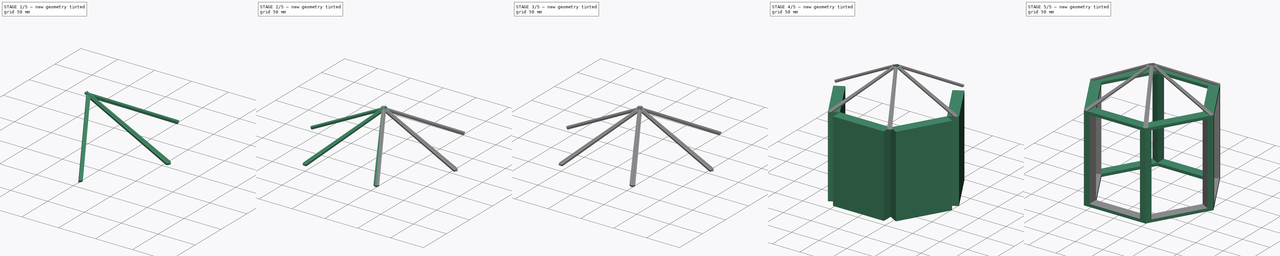
[diagram: build sequence overview — one tinted view per stage of 5, left to right]
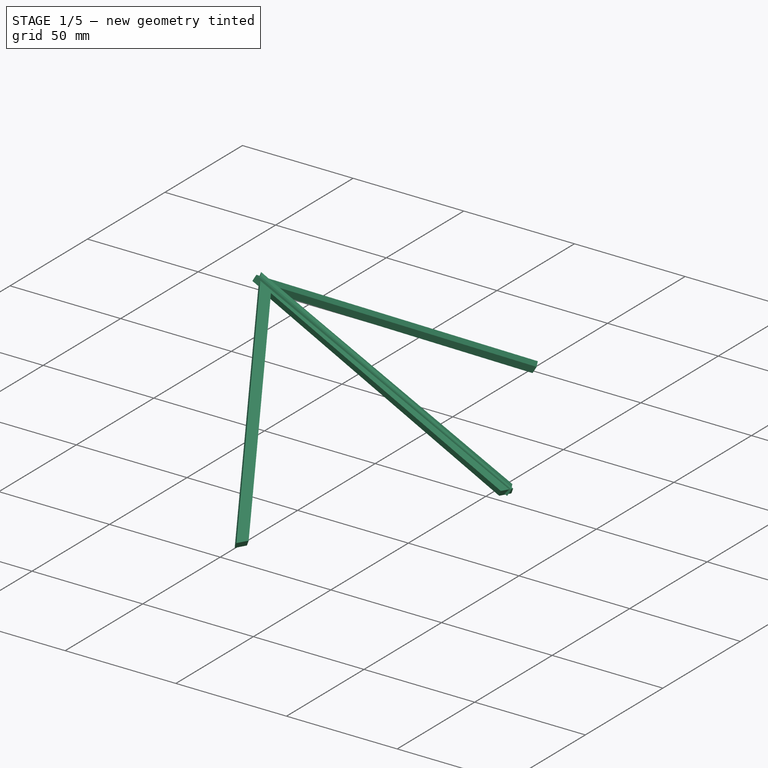
[diagram: stage 1 of 5 — iso view after this stage's code; geometry added in this stage tinted green]
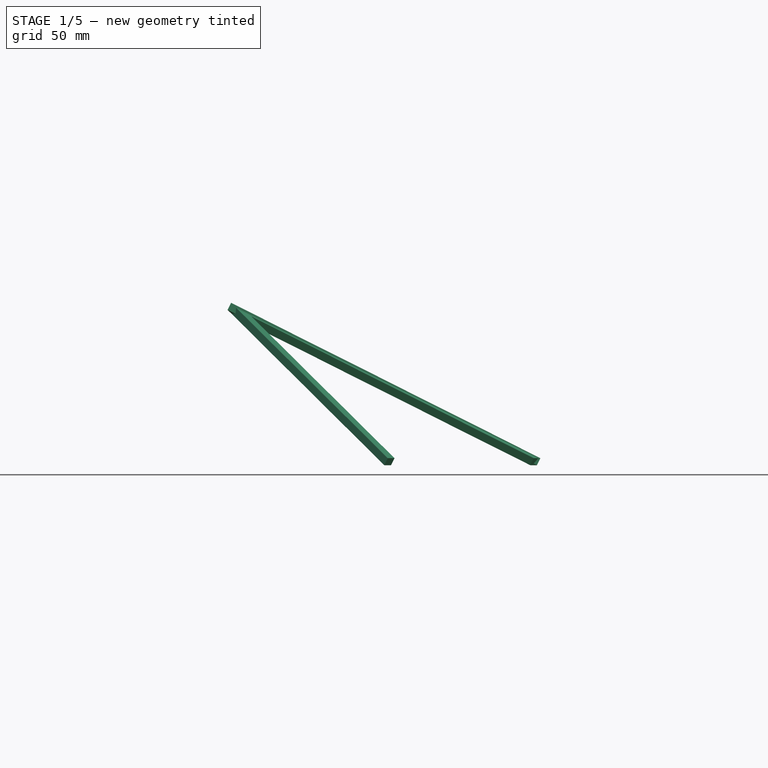
[diagram: stage 1 of 5 — front view after this stage's code; geometry added in this stage tinted green]
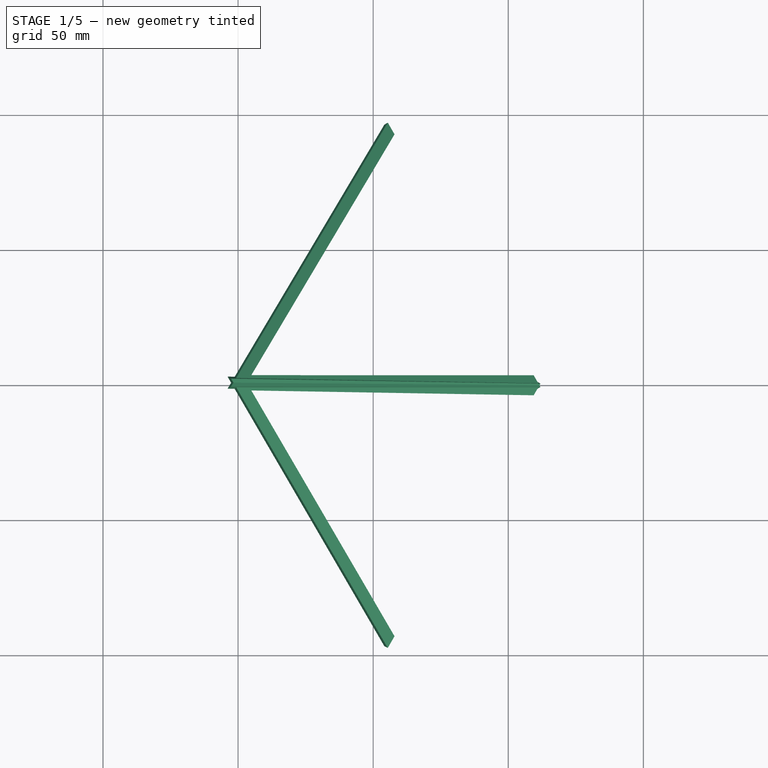
[diagram: stage 1 of 5 — top view after this stage's code; geometry added in this stage tinted green]
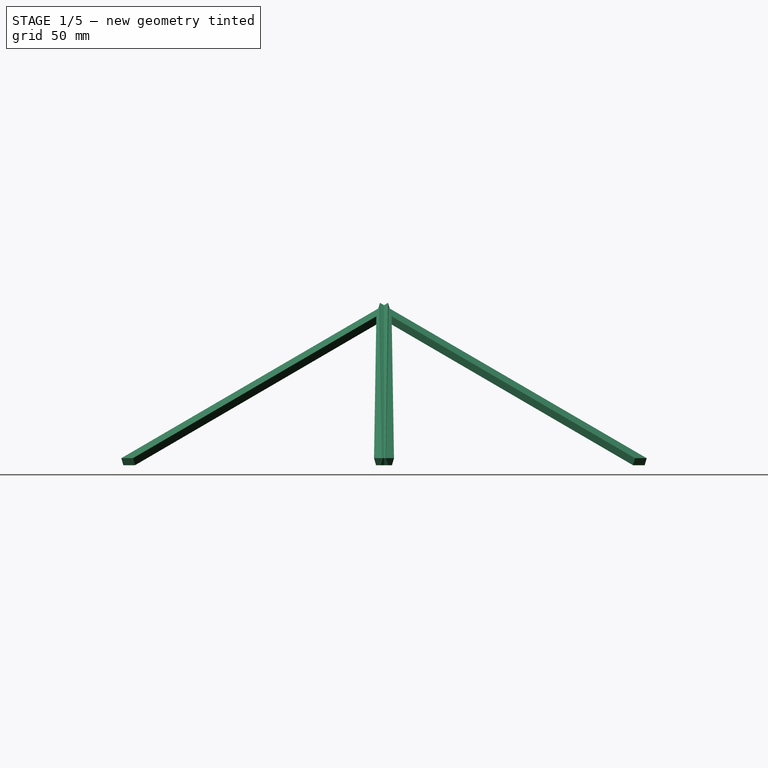
[diagram: stage 1 of 5 — right view after this stage's code; geometry added in this stage tinted green]
FCSTD DOCUMENT  (FreeCAD 1.0R1.0rc2)
Label: LaternFillerStructure
License: All rights reserved
LicenseURL: http://en.wikipedia.org/wiki/All_rights_reserved
objects: Part::Compound×18, Sketcher::SketchObject×14, PartDesign::Pad×14, PartDesign::Body×14, Part::Cut×9, Part::Box×6, Part::MultiFuse×3, Part::Cylinder×1
note: 121 computed .brp shape members not serialized (recipe doc carries the construction recipe); baked Part::Feature solids carry a one-line shape summary decoded from their .brp

FEATURE [Sketcher::SketchObject] Sketch011
  ArcFitTolerance = 1e-06
  AttachmentSupport = -> [XZ_Plane011]
  FullyConstrained = true
  MakeInternals = false
  MapMode = 5
  Placement = pos=(0,0,0) rot=(1,0,0;1.5708rad)
  sketch-geometry (3):
    g0: LineSegment StartX=-56.5 StartY=0 StartZ=0 EndX=56.5 EndY=0 EndZ=0
    g1: LineSegment StartX=56.5 StartY=0 StartZ=0 EndX=0 EndY=115 EndZ=0
    g2: LineSegment StartX=0 StartY=115 StartZ=0 EndX=-56.5 EndY=0 EndZ=0
  constraints (9):
    c: PointOnObject(g0,g-1)
    c: PointOnObject(g0,g-1)
    c: Coincident(g0,g1)
    c: PointOnObject(g1,g-2)
    c: Coincident(g1,g2)
    c: Coincident(g2,g0)
    c: DistanceX(g0,g0) = 113
    c: DistanceY(g0,g1) = 115
    c: DistanceX(g0,g-1) = 56.5
FEATURE [PartDesign::Pad] Pad011
  Direction = (0,-1,2e-16)
  Length = 3
  Length2 = 10
  Placement = pos=(0,0,0) rot=(1,0,0;1.5708rad)
  Profile = -> Sketch011
  ReferenceAxis = -> Sketch011 [N_Axis]
  Suppressed = false
  Type = 0
FEATURE [PartDesign::Body] Body011
  AllowCompound = false
  Group = -> [Sketch011,Pad011]
  Origin = -> Origin011
  Placement = pos=(0,96.6,157) rot=(1,0,0;1.0472rad)
  Tip = -> Pad011
FEATURE [Part::Compound] Compound014
  Links = -> [Body011]
FEATURE [Sketcher::SketchObject] Sketch012
  ArcFitTolerance = 1e-06
  AttachmentSupport = -> [XZ_Plane012]
  FullyConstrained = true
  MakeInternals = false
  MapMode = 5
  Placement = pos=(0,0,0) rot=(1,0,0;1.5708rad)
  sketch-geometry (3):
    g0: LineSegment StartX=-51.5 StartY=0 StartZ=0 EndX=51.5 EndY=0 EndZ=0
    g1: LineSegment StartX=51.5 StartY=0 StartZ=0 EndX=0 EndY=105 EndZ=0
    g2: LineSegment StartX=0 StartY=105 StartZ=0 EndX=-51.5 EndY=0 EndZ=0
  constraints (9):
    c: PointOnObject(g0,g-1)
    c: PointOnObject(g0,g-1)
    c: Coincident(g0,g1)
    c: PointOnObject(g1,g-2)
    c: Coincident(g1,g2)
    c: Coincident(g2,g0)
    c: DistanceX(g0,g0) = 103
    c: DistanceY(g0,g1) = 105
    c: DistanceX(g0,g-1) = 51.5
FEATURE [PartDesign::Pad] Pad012
  Direction = (0,-1,2e-16)
  Length = 3
  Length2 = 10
  Placement = pos=(0,0,0) rot=(1,0,0;1.5708rad)
  Profile = -> Sketch012
  ReferenceAxis = -> Sketch012 [N_Axis]
  Suppressed = false
  Type = 0
FEATURE [PartDesign::Body] Body012
  AllowCompound = false
  Group = -> [Sketch012,Pad012]
  Origin = -> Origin012
  Placement = pos=(0,96.6,157) rot=(1,0,0;1.0472rad)
  Tip = -> Pad012
FEATURE [Part::Compound] Compound015
  Links = -> [Body012]
FEATURE [Part::Cut] Cut006
  Base = -> Compound014
  Placement = pos=(0,0,0) rot=(0,0,1;4.18879rad)
  Tool = -> Compound015
FEATURE [Sketcher::SketchObject] Sketch013
  ArcFitTolerance = 1e-06
  AttachmentSupport = -> [XZ_Plane013]
  FullyConstrained = true
  MakeInternals = false
  MapMode = 5
  Placement = pos=(0,0,0) rot=(1,0,0;1.5708rad)
  sketch-geometry (3):
    g0: LineSegment StartX=-56.5 StartY=0 StartZ=0 EndX=56.5 EndY=0 EndZ=0
    g1: LineSegment StartX=56.5 StartY=0 StartZ=0 EndX=0 EndY=115 EndZ=0
    g2: LineSegment StartX=0 StartY=115 StartZ=0 EndX=-56.5 EndY=0 EndZ=0
  constraints (9):
    c: PointOnObject(g0,g-1)
    c: PointOnObject(g0,g-1)
    c: Coincident(g0,g1)
    c: PointOnObject(g1,g-2)
    c: Coincident(g1,g2)
    c: Coincident(g2,g0)
    c: DistanceX(g0,g0) = 113
    c: DistanceY(g0,g1) = 115
    c: DistanceX(g0,g-1) = 56.5
FEATURE [PartDesign::Pad] Pad013
  Direction = (0,-1,2e-16)
  Length = 3
  Length2 = 10
  Placement = pos=(0,0,0) rot=(1,0,0;1.5708rad)
  Profile = -> Sketch013
  ReferenceAxis = -> Sketch013 [N_Axis]
  Suppressed = false
  Type = 0
FEATURE [PartDesign::Body] Body013
  AllowCompound = false
  Group = -> [Sketch013,Pad013]
  Origin = -> Origin013
  Placement = pos=(0,96.6,157) rot=(1,0,0;1.0472rad)
  Tip = -> Pad013
FEATURE [Part::Compound] Compound016
  Links = -> [Body013]
FEATURE [Sketcher::SketchObject] Sketch014
  ArcFitTolerance = 1e-06
  AttachmentSupport = -> [XZ_Plane014]
  FullyConstrained = true
  MakeInternals = false
  MapMode = 5
  Placement = pos=(0,0,0) rot=(1,0,0;1.5708rad)
  sketch-geometry (3):
    g0: LineSegment StartX=-51.5 StartY=0 StartZ=0 EndX=51.5 EndY=0 EndZ=0
    g1: LineSegment StartX=51.5 StartY=0 StartZ=0 EndX=0 EndY=105 EndZ=0
    g2: LineSegment StartX=0 StartY=105 StartZ=0 EndX=-51.5 EndY=0 EndZ=0
  constraints (9):
    c: PointOnObject(g0,g-1)
    c: PointOnObject(g0,g-1)
    c: Coincident(g0,g1)
    c: PointOnObject(g1,g-2)
    c: Coincident(g1,g2)
    c: Coincident(g2,g0)
    c: DistanceX(g0,g0) = 103
    c: DistanceY(g0,g1) = 105
    c: DistanceX(g0,g-1) = 51.5
FEATURE [PartDesign::Pad] Pad014
  Direction = (0,-1,2e-16)
  Length = 3
  Length2 = 10
  Placement = pos=(0,0,0) rot=(1,0,0;1.5708rad)
  Profile = -> Sketch014
  ReferenceAxis = -> Sketch014 [N_Axis]
  Suppressed = false
  Type = 0
FEATURE [PartDesign::Body] Body014
  AllowCompound = false
  Group = -> [Sketch014,Pad014]
  Origin = -> Origin014
  Placement = pos=(0,96.6,157) rot=(1,0,0;1.0472rad)
  Tip = -> Pad014
FEATURE [Part::Compound] Compound017
  Links = -> [Body014]
FEATURE [Part::Cut] Cut007
  Base = -> Compound016
  Placement = pos=(0,0,0) rot=(0,0,1;5.23599rad)
  Tool = -> Compound017
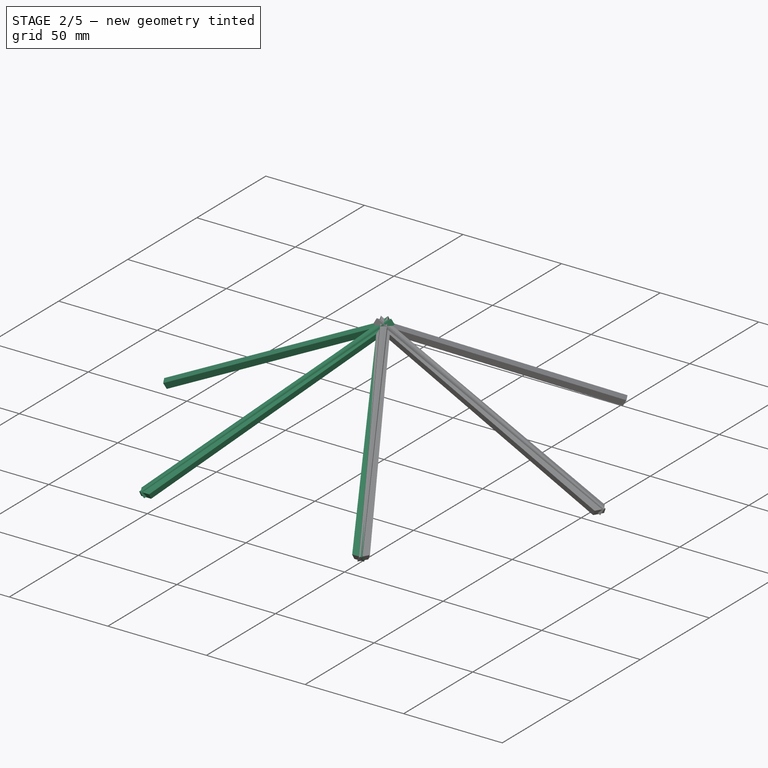
[diagram: stage 2 of 5 — iso view after this stage's code; geometry added in this stage tinted green]
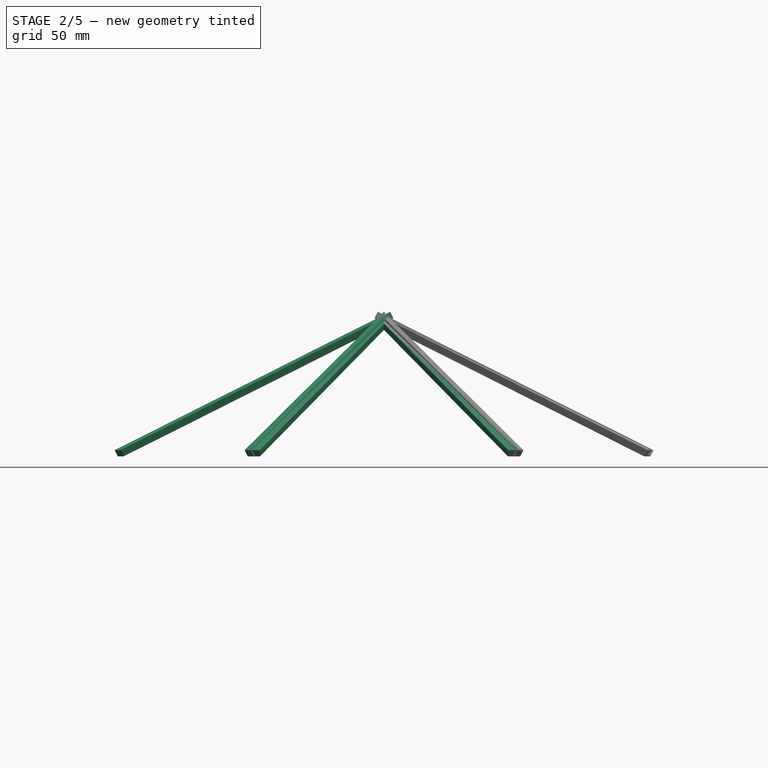
[diagram: stage 2 of 5 — front view after this stage's code; geometry added in this stage tinted green]
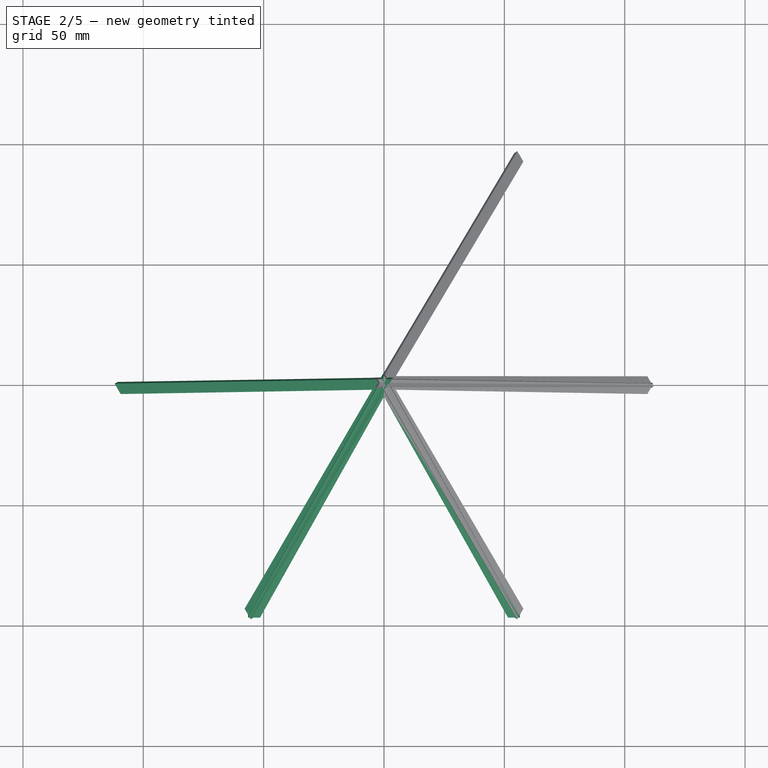
[diagram: stage 2 of 5 — top view after this stage's code; geometry added in this stage tinted green]
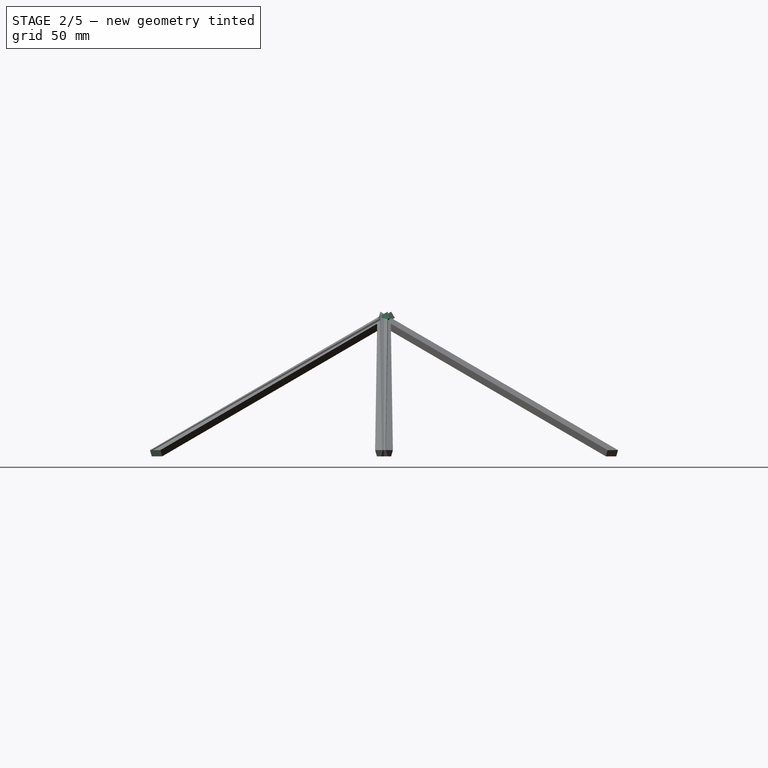
[diagram: stage 2 of 5 — right view after this stage's code; geometry added in this stage tinted green]
FEATURE [Sketcher::SketchObject] Sketch007
  ArcFitTolerance = 1e-06
  AttachmentSupport = -> [XZ_Plane007]
  FullyConstrained = true
  MakeInternals = false
  MapMode = 5
  Placement = pos=(0,0,0) rot=(1,0,0;1.5708rad)
  sketch-geometry (3):
    g0: LineSegment StartX=-56.5 StartY=0 StartZ=0 EndX=56.5 EndY=0 EndZ=0
    g1: LineSegment StartX=56.5 StartY=0 StartZ=0 EndX=0 EndY=115 EndZ=0
    g2: LineSegment StartX=0 StartY=115 StartZ=0 EndX=-56.5 EndY=0 EndZ=0
  constraints (9):
    c: PointOnObject(g0,g-1)
    c: PointOnObject(g0,g-1)
    c: Coincident(g0,g1)
    c: PointOnObject(g1,g-2)
    c: Coincident(g1,g2)
    c: Coincident(g2,g0)
    c: DistanceX(g0,g0) = 113
    c: DistanceY(g0,g1) = 115
    c: DistanceX(g0,g-1) = 56.5
FEATURE [PartDesign::Pad] Pad007
  Direction = (0,-1,2e-16)
  Length = 3
  Length2 = 10
  Placement = pos=(0,0,0) rot=(1,0,0;1.5708rad)
  Profile = -> Sketch007
  ReferenceAxis = -> Sketch007 [N_Axis]
  Suppressed = false
  Type = 0
FEATURE [PartDesign::Body] Body007
  AllowCompound = false
  Group = -> [Sketch007,Pad007]
  Origin = -> Origin007
  Placement = pos=(0,96.6,157) rot=(1,0,0;1.0472rad)
  Tip = -> Pad007
FEATURE [Part::Compound] Compound010
  Links = -> [Body007]
FEATURE [Sketcher::SketchObject] Sketch008
  ArcFitTolerance = 1e-06
  AttachmentSupport = -> [XZ_Plane008]
  FullyConstrained = true
  MakeInternals = false
  MapMode = 5
  Placement = pos=(0,0,0) rot=(1,0,0;1.5708rad)
  sketch-geometry (3):
    g0: LineSegment StartX=-51.5 StartY=0 StartZ=0 EndX=51.5 EndY=0 EndZ=0
    g1: LineSegment StartX=51.5 StartY=0 StartZ=0 EndX=0 EndY=105 EndZ=0
    g2: LineSegment StartX=0 StartY=105 StartZ=0 EndX=-51.5 EndY=0 EndZ=0
  constraints (9):
    c: PointOnObject(g0,g-1)
    c: PointOnObject(g0,g-1)
    c: Coincident(g0,g1)
    c: PointOnObject(g1,g-2)
    c: Coincident(g1,g2)
    c: Coincident(g2,g0)
    c: DistanceX(g0,g0) = 103
    c: DistanceY(g0,g1) = 105
    c: DistanceX(g0,g-1) = 51.5
FEATURE [PartDesign::Pad] Pad008
  Direction = (0,-1,2e-16)
  Length = 3
  Length2 = 10
  Placement = pos=(0,0,0) rot=(1,0,0;1.5708rad)
  Profile = -> Sketch008
  ReferenceAxis = -> Sketch008 [N_Axis]
  Suppressed = false
  Type = 0
FEATURE [PartDesign::Body] Body008
  AllowCompound = false
  Group = -> [Sketch008,Pad008]
  Origin = -> Origin008
  Placement = pos=(0,96.6,157) rot=(1,0,0;1.0472rad)
  Tip = -> Pad008
FEATURE [Part::Compound] Compound011
  Links = -> [Body008]
FEATURE [Part::Cut] Cut004
  Base = -> Compound010
  Placement = pos=(0,0,0) rot=(0,0,1;2.0944rad)
  Tool = -> Compound011
FEATURE [Sketcher::SketchObject] Sketch009
  ArcFitTolerance = 1e-06
  AttachmentSupport = -> [XZ_Plane009]
  FullyConstrained = true
  MakeInternals = false
  MapMode = 5
  Placement = pos=(0,0,0) rot=(1,0,0;1.5708rad)
  sketch-geometry (3):
    g0: LineSegment StartX=-56.5 StartY=0 StartZ=0 EndX=56.5 EndY=0 EndZ=0
    g1: LineSegment StartX=56.5 StartY=0 StartZ=0 EndX=0 EndY=115 EndZ=0
    g2: LineSegment StartX=0 StartY=115 StartZ=0 EndX=-56.5 EndY=0 EndZ=0
  constraints (9):
    c: PointOnObject(g0,g-1)
    c: PointOnObject(g0,g-1)
    c: Coincident(g0,g1)
    c: PointOnObject(g1,g-2)
    c: Coincident(g1,g2)
    c: Coincident(g2,g0)
    c: DistanceX(g0,g0) = 113
    c: DistanceY(g0,g1) = 115
    c: DistanceX(g0,g-1) = 56.5
FEATURE [PartDesign::Pad] Pad009
  Direction = (0,-1,2e-16)
  Length = 3
  Length2 = 10
  Placement = pos=(0,0,0) rot=(1,0,0;1.5708rad)
  Profile = -> Sketch009
  ReferenceAxis = -> Sketch009 [N_Axis]
  Suppressed = false
  Type = 0
FEATURE [PartDesign::Body] Body009
  AllowCompound = false
  Group = -> [Sketch009,Pad009]
  Origin = -> Origin009
  Placement = pos=(0,96.6,157) rot=(1,0,0;1.0472rad)
  Tip = -> Pad009
FEATURE [Part::Compound] Compound012
  Links = -> [Body009]
FEATURE [Sketcher::SketchObject] Sketch010
  ArcFitTolerance = 1e-06
  AttachmentSupport = -> [XZ_Plane010]
  FullyConstrained = true
  MakeInternals = false
  MapMode = 5
  Placement = pos=(0,0,0) rot=(1,0,0;1.5708rad)
  sketch-geometry (3):
    g0: LineSegment StartX=-51.5 StartY=0 StartZ=0 EndX=51.5 EndY=0 EndZ=0
    g1: LineSegment StartX=51.5 StartY=0 StartZ=0 EndX=0 EndY=105 EndZ=0
    g2: LineSegment StartX=0 StartY=105 StartZ=0 EndX=-51.5 EndY=0 EndZ=0
  constraints (9):
    c: PointOnObject(g0,g-1)
    c: PointOnObject(g0,g-1)
    c: Coincident(g0,g1)
    c: PointOnObject(g1,g-2)
    c: Coincident(g1,g2)
    c: Coincident(g2,g0)
    c: DistanceX(g0,g0) = 103
    c: DistanceY(g0,g1) = 105
    c: DistanceX(g0,g-1) = 51.5
FEATURE [PartDesign::Pad] Pad010
  Direction = (0,-1,2e-16)
  Length = 3
  Length2 = 10
  Placement = pos=(0,0,0) rot=(1,0,0;1.5708rad)
  Profile = -> Sketch010
  ReferenceAxis = -> Sketch010 [N_Axis]
  Suppressed = false
  Type = 0
FEATURE [PartDesign::Body] Body010
  AllowCompound = false
  Group = -> [Sketch010,Pad010]
  Origin = -> Origin010
  Placement = pos=(0,96.6,157) rot=(1,0,0;1.0472rad)
  Tip = -> Pad010
FEATURE [Part::Compound] Compound013
  Links = -> [Body010]
FEATURE [Part::Cut] Cut005
  Base = -> Compound012
  Placement = pos=(0,0,0) rot=(0,0,1;3.14159rad)
  Tool = -> Compound013
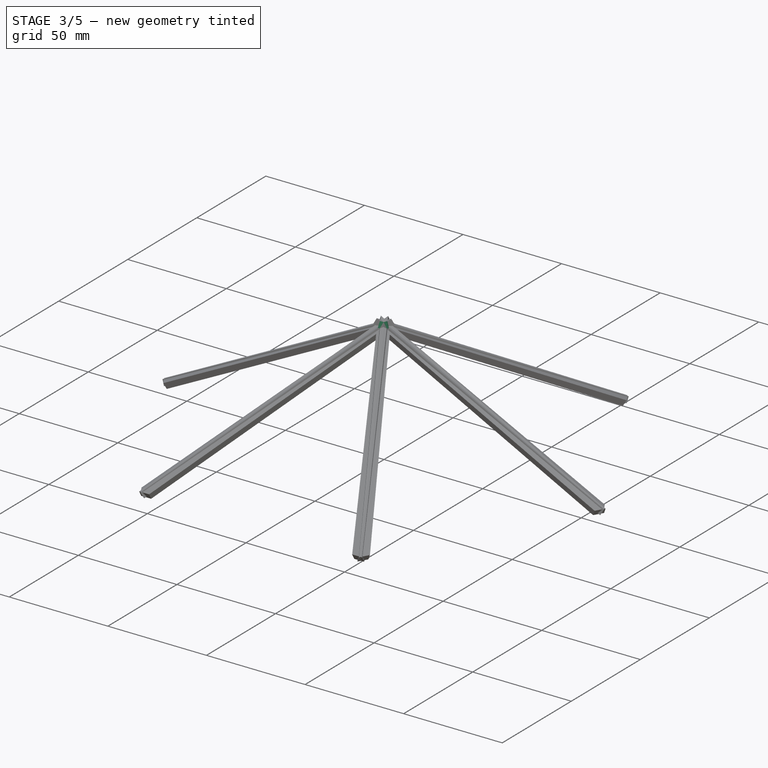
[diagram: stage 3 of 5 — iso view after this stage's code; geometry added in this stage tinted green]
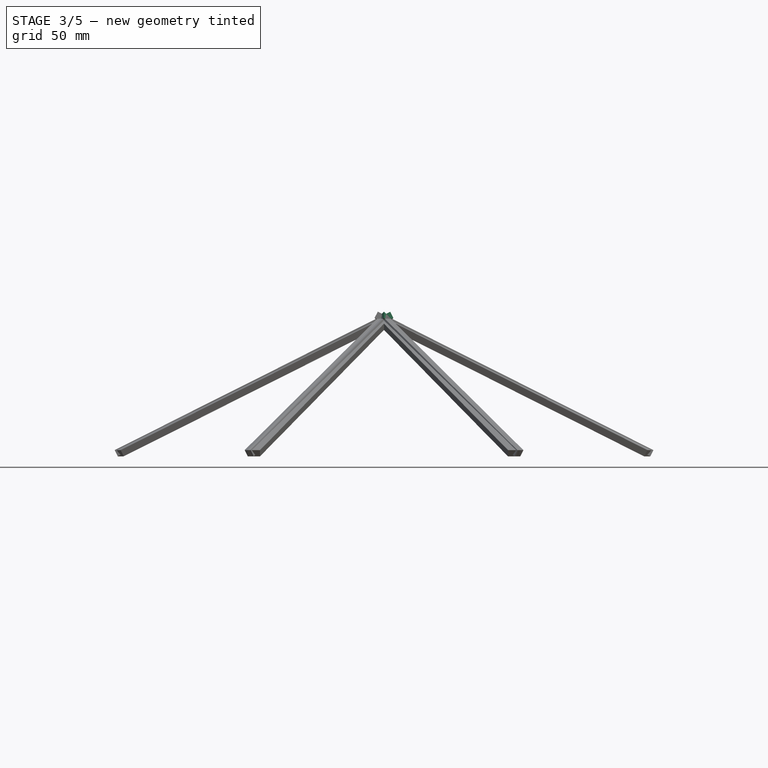
[diagram: stage 3 of 5 — front view after this stage's code; geometry added in this stage tinted green]
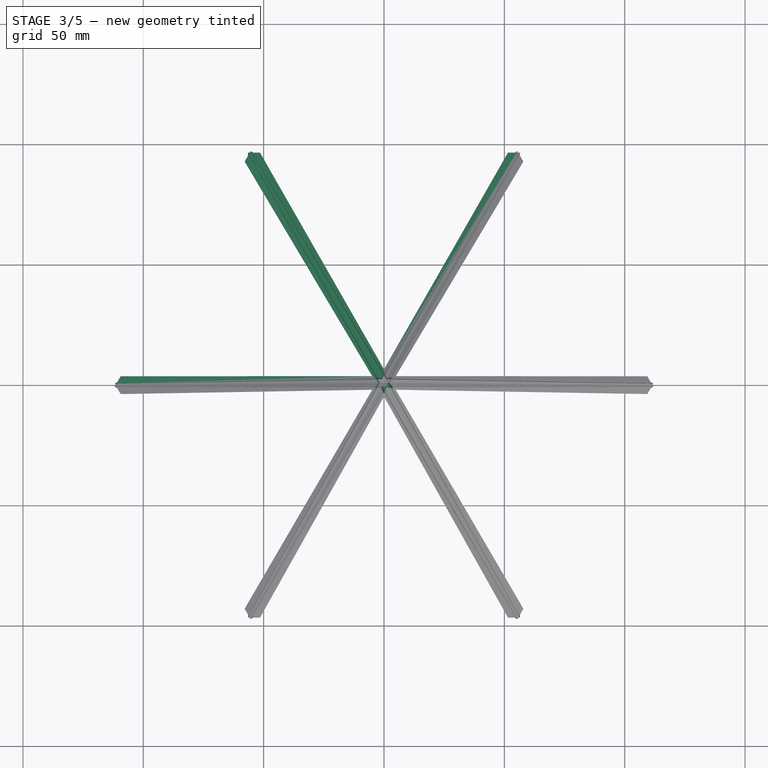
[diagram: stage 3 of 5 — top view after this stage's code; geometry added in this stage tinted green]
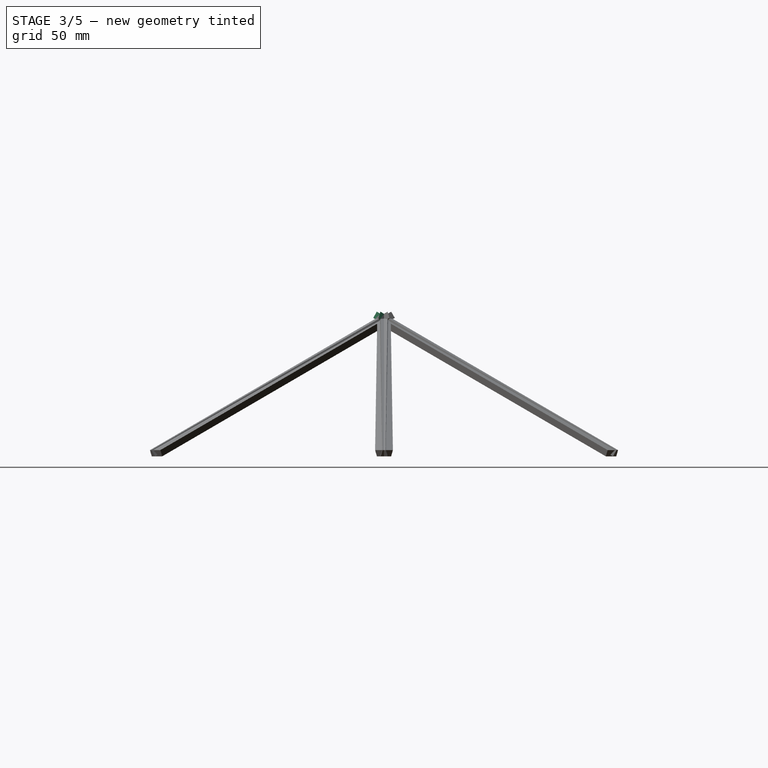
[diagram: stage 3 of 5 — right view after this stage's code; geometry added in this stage tinted green]
FEATURE [Sketcher::SketchObject] Sketch003
  ArcFitTolerance = 1e-06
  AttachmentSupport = -> [XZ_Plane003]
  FullyConstrained = true
  MakeInternals = false
  MapMode = 5
  Placement = pos=(0,0,0) rot=(1,0,0;1.5708rad)
  sketch-geometry (3):
    g0: LineSegment StartX=-56.5 StartY=0 StartZ=0 EndX=56.5 EndY=0 EndZ=0
    g1: LineSegment StartX=56.5 StartY=0 StartZ=0 EndX=0 EndY=115 EndZ=0
    g2: LineSegment StartX=0 StartY=115 StartZ=0 EndX=-56.5 EndY=0 EndZ=0
  constraints (9):
    c: PointOnObject(g0,g-1)
    c: PointOnObject(g0,g-1)
    c: Coincident(g0,g1)
    c: PointOnObject(g1,g-2)
    c: Coincident(g1,g2)
    c: Coincident(g2,g0)
    c: DistanceX(g0,g0) = 113
    c: DistanceY(g0,g1) = 115
    c: DistanceX(g0,g-1) = 56.5
FEATURE [PartDesign::Pad] Pad003
  Direction = (0,-1,2e-16)
  Length = 3
  Length2 = 10
  Placement = pos=(0,0,0) rot=(1,0,0;1.5708rad)
  Profile = -> Sketch003
  ReferenceAxis = -> Sketch003 [N_Axis]
  Suppressed = false
  Type = 0
FEATURE [PartDesign::Body] Body003
  AllowCompound = false
  Group = -> [Sketch003,Pad003]
  Origin = -> Origin003
  Placement = pos=(0,96.6,157) rot=(1,0,0;1.0472rad)
  Tip = -> Pad003
FEATURE [Part::Compound] Compound006
  Links = -> [Body003]
FEATURE [Sketcher::SketchObject] Sketch004
  ArcFitTolerance = 1e-06
  AttachmentSupport = -> [XZ_Plane004]
  FullyConstrained = true
  MakeInternals = false
  MapMode = 5
  Placement = pos=(0,0,0) rot=(1,0,0;1.5708rad)
  sketch-geometry (3):
    g0: LineSegment StartX=-51.5 StartY=0 StartZ=0 EndX=51.5 EndY=0 EndZ=0
    g1: LineSegment StartX=51.5 StartY=0 StartZ=0 EndX=0 EndY=105 EndZ=0
    g2: LineSegment StartX=0 StartY=105 StartZ=0 EndX=-51.5 EndY=0 EndZ=0
  constraints (9):
    c: PointOnObject(g0,g-1)
    c: PointOnObject(g0,g-1)
    c: Coincident(g0,g1)
    c: PointOnObject(g1,g-2)
    c: Coincident(g1,g2)
    c: Coincident(g2,g0)
    c: DistanceX(g0,g0) = 103
    c: DistanceY(g0,g1) = 105
    c: DistanceX(g0,g-1) = 51.5
FEATURE [PartDesign::Pad] Pad004
  Direction = (0,-1,2e-16)
  Length = 3
  Length2 = 10
  Placement = pos=(0,0,0) rot=(1,0,0;1.5708rad)
  Profile = -> Sketch004
  ReferenceAxis = -> Sketch004 [N_Axis]
  Suppressed = false
  Type = 0
FEATURE [PartDesign::Body] Body004
  AllowCompound = false
  Group = -> [Sketch004,Pad004]
  Origin = -> Origin004
  Placement = pos=(0,96.6,157) rot=(1,0,0;1.0472rad)
  Tip = -> Pad004
FEATURE [Part::Compound] Compound007
  Links = -> [Body004]
FEATURE [Part::Cut] Cut002
  Base = -> Compound006
  Tool = -> Compound007
FEATURE [Sketcher::SketchObject] Sketch005
  ArcFitTolerance = 1e-06
  AttachmentSupport = -> [XZ_Plane005]
  FullyConstrained = true
  MakeInternals = false
  MapMode = 5
  Placement = pos=(0,0,0) rot=(1,0,0;1.5708rad)
  sketch-geometry (3):
    g0: LineSegment StartX=-56.5 StartY=0 StartZ=0 EndX=56.5 EndY=0 EndZ=0
    g1: LineSegment StartX=56.5 StartY=0 StartZ=0 EndX=0 EndY=115 EndZ=0
    g2: LineSegment StartX=0 StartY=115 StartZ=0 EndX=-56.5 EndY=0 EndZ=0
  constraints (9):
    c: PointOnObject(g0,g-1)
    c: PointOnObject(g0,g-1)
    c: Coincident(g0,g1)
    c: PointOnObject(g1,g-2)
    c: Coincident(g1,g2)
    c: Coincident(g2,g0)
    c: DistanceX(g0,g0) = 113
    c: DistanceY(g0,g1) = 115
    c: DistanceX(g0,g-1) = 56.5
FEATURE [PartDesign::Pad] Pad005
  Direction = (0,-1,2e-16)
  Length = 3
  Length2 = 10
  Placement = pos=(0,0,0) rot=(1,0,0;1.5708rad)
  Profile = -> Sketch005
  ReferenceAxis = -> Sketch005 [N_Axis]
  Suppressed = false
  Type = 0
FEATURE [PartDesign::Body] Body005
  AllowCompound = false
  Group = -> [Sketch005,Pad005]
  Origin = -> Origin005
  Placement = pos=(0,96.6,157) rot=(1,0,0;1.0472rad)
  Tip = -> Pad005
FEATURE [Part::Compound] Compound008
  Links = -> [Body005]
FEATURE [Sketcher::SketchObject] Sketch006
  ArcFitTolerance = 1e-06
  AttachmentSupport = -> [XZ_Plane006]
  FullyConstrained = true
  MakeInternals = false
  MapMode = 5
  Placement = pos=(0,0,0) rot=(1,0,0;1.5708rad)
  sketch-geometry (3):
    g0: LineSegment StartX=-51.5 StartY=0 StartZ=0 EndX=51.5 EndY=0 EndZ=0
    g1: LineSegment StartX=51.5 StartY=0 StartZ=0 EndX=0 EndY=105 EndZ=0
    g2: LineSegment StartX=0 StartY=105 StartZ=0 EndX=-51.5 EndY=0 EndZ=0
  constraints (9):
    c: PointOnObject(g0,g-1)
    c: PointOnObject(g0,g-1)
    c: Coincident(g0,g1)
    c: PointOnObject(g1,g-2)
    c: Coincident(g1,g2)
    c: Coincident(g2,g0)
    c: DistanceX(g0,g0) = 103
    c: DistanceY(g0,g1) = 105
    c: DistanceX(g0,g-1) = 51.5
FEATURE [PartDesign::Pad] Pad006
  Direction = (0,-1,2e-16)
  Length = 3
  Length2 = 10
  Placement = pos=(0,0,0) rot=(1,0,0;1.5708rad)
  Profile = -> Sketch006
  ReferenceAxis = -> Sketch006 [N_Axis]
  Suppressed = false
  Type = 0
FEATURE [PartDesign::Body] Body006
  AllowCompound = false
  Group = -> [Sketch006,Pad006]
  Origin = -> Origin006
  Placement = pos=(0,96.6,157) rot=(1,0,0;1.0472rad)
  Tip = -> Pad006
FEATURE [Part::Compound] Compound009
  Links = -> [Body006]
FEATURE [Part::Cut] Cut003
  Base = -> Compound008
  Placement = pos=(0,0,0) rot=(0,0,1;1.0472rad)
  Tool = -> Compound009
FEATURE [Part::MultiFuse] Fusion001
  Shapes = -> [Cut007,Cut002,Cut003,Cut004,Cut005,Cut006]
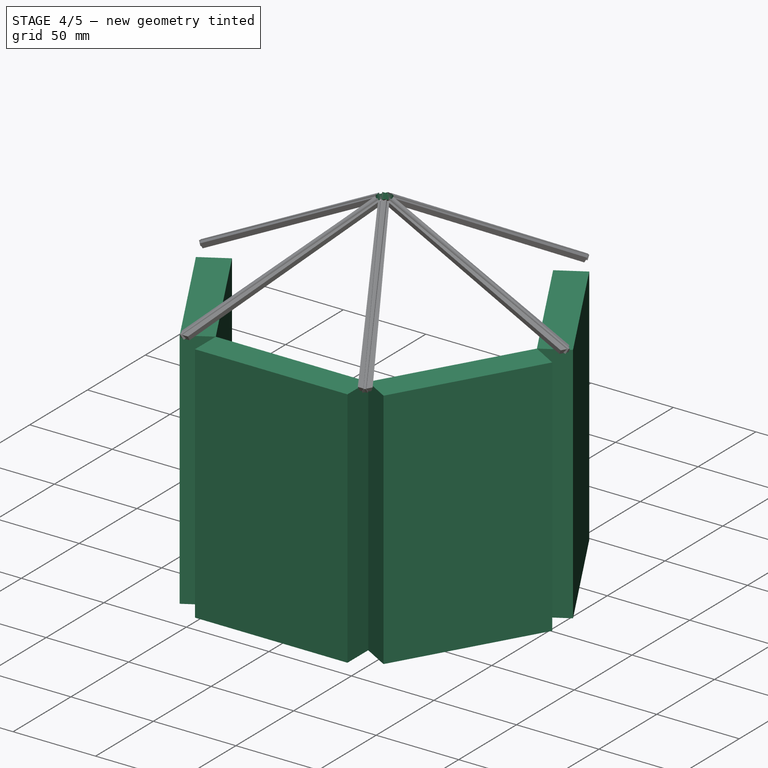
[diagram: stage 4 of 5 — iso view after this stage's code; geometry added in this stage tinted green]
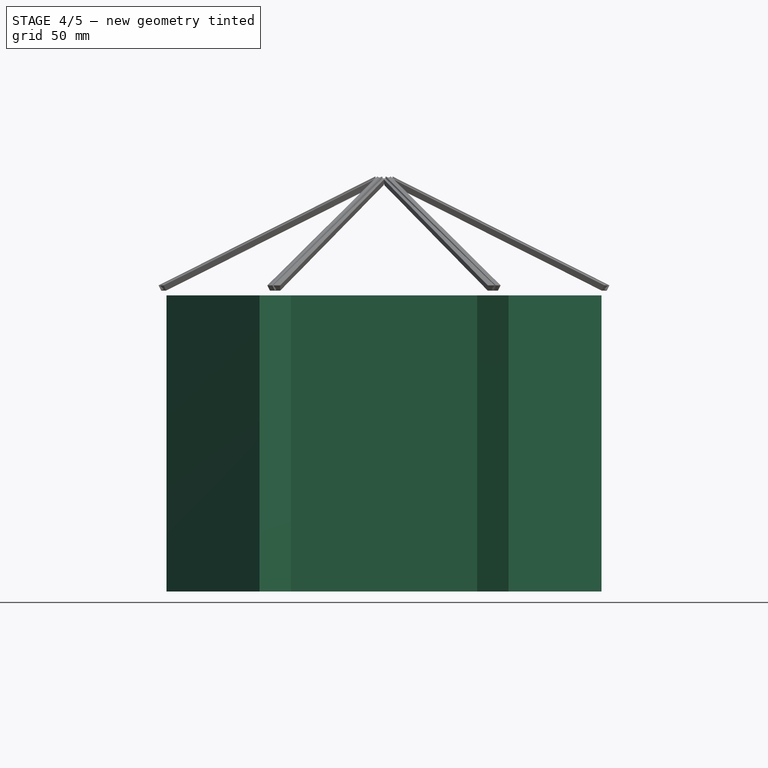
[diagram: stage 4 of 5 — front view after this stage's code; geometry added in this stage tinted green]
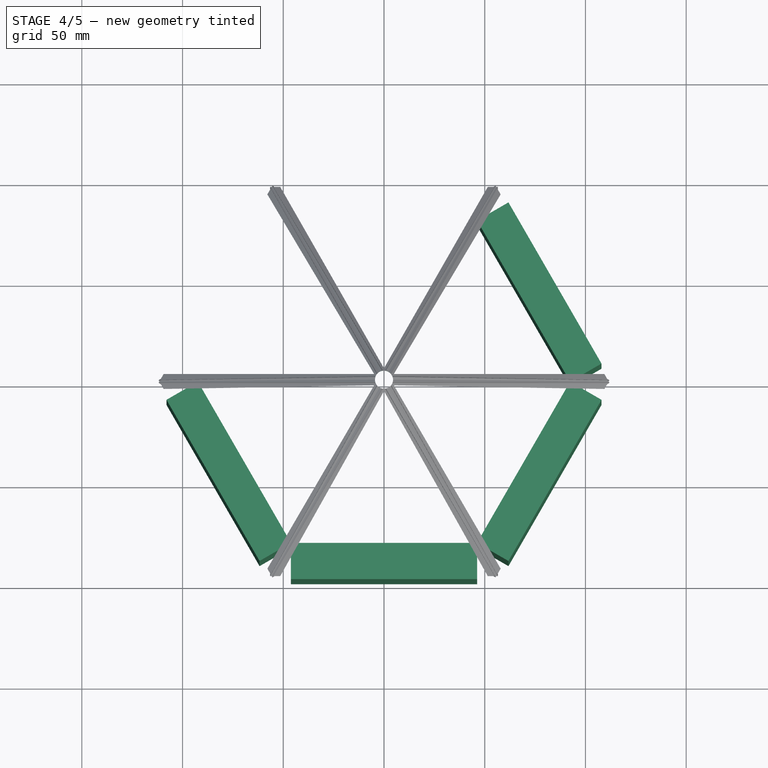
[diagram: stage 4 of 5 — top view after this stage's code; geometry added in this stage tinted green]
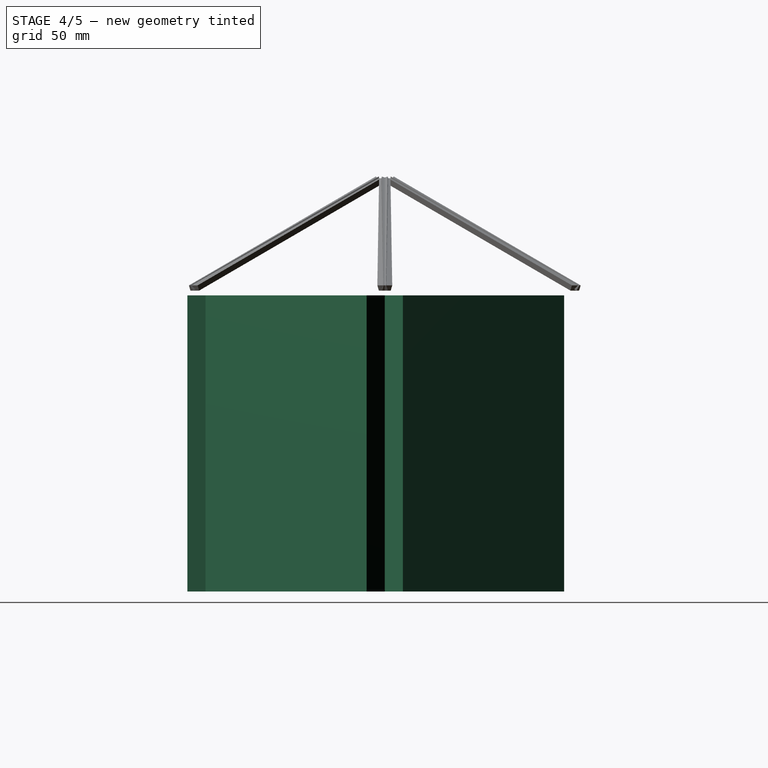
[diagram: stage 4 of 5 — right view after this stage's code; geometry added in this stage tinted green]
FEATURE [Part::Box] Box002  label="Cube002"
  AttacherType = Attacher::AttachEngine3D
  Height = 147
  Length = 92.4
  Placement = pos=(-46.2,80,5) rot=(0,0,1;0rad)
  Width = 18
FEATURE [Part::Compound] Compound002
  Links = -> [Box002]
  Placement = pos=(0,0,0) rot=(0,0,1;2.0944rad)
FEATURE [Part::Box] Box003  label="Cube003"
  AttacherType = Attacher::AttachEngine3D
  Height = 147
  Length = 92.4
  Placement = pos=(-46.2,80,5) rot=(0,0,1;0rad)
  Width = 18
FEATURE [Part::Compound] Compound003
  Links = -> [Box003]
  Placement = pos=(0,0,0) rot=(0,0,1;3.14159rad)
FEATURE [Part::Box] Box004  label="Cube004"
  AttacherType = Attacher::AttachEngine3D
  Height = 147
  Length = 92.4
  Placement = pos=(-46.2,80,5) rot=(0,0,1;0rad)
  Width = 18
FEATURE [Part::Compound] Compound004
  Links = -> [Box004]
  Placement = pos=(0,0,0) rot=(0,0,1;4.18879rad)
FEATURE [Part::Box] Box005  label="Cube005"
  AttacherType = Attacher::AttachEngine3D
  Height = 147
  Length = 92.4
  Placement = pos=(-46.2,80,5) rot=(0,0,1;0rad)
  Width = 18
FEATURE [Part::Compound] Compound005
  Links = -> [Box005]
  Placement = pos=(0,0,0) rot=(0,0,1;5.23599rad)
FEATURE [Part::Cylinder] Cylinder
  Angle = 360
  AttacherType = Attacher::AttachEngine3D
  FirstAngle = 0
  Height = 1000
  Radius = 4.5
  SecondAngle = 0
FEATURE [Part::Cut] Cut008
  Base = -> Fusion001
  Tool = -> Cylinder
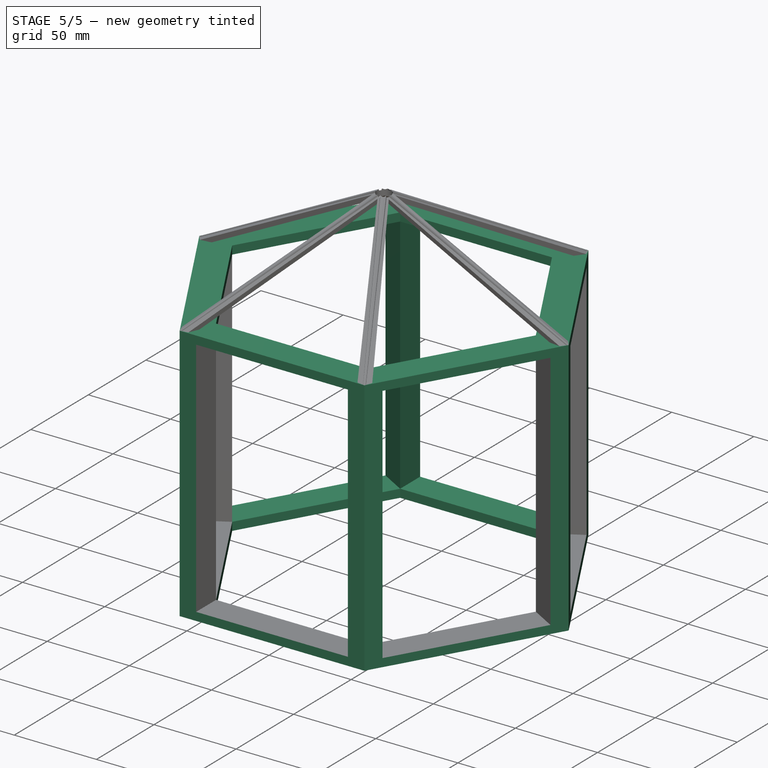
[diagram: stage 5 of 5 — iso view after this stage's code; geometry added in this stage tinted green]
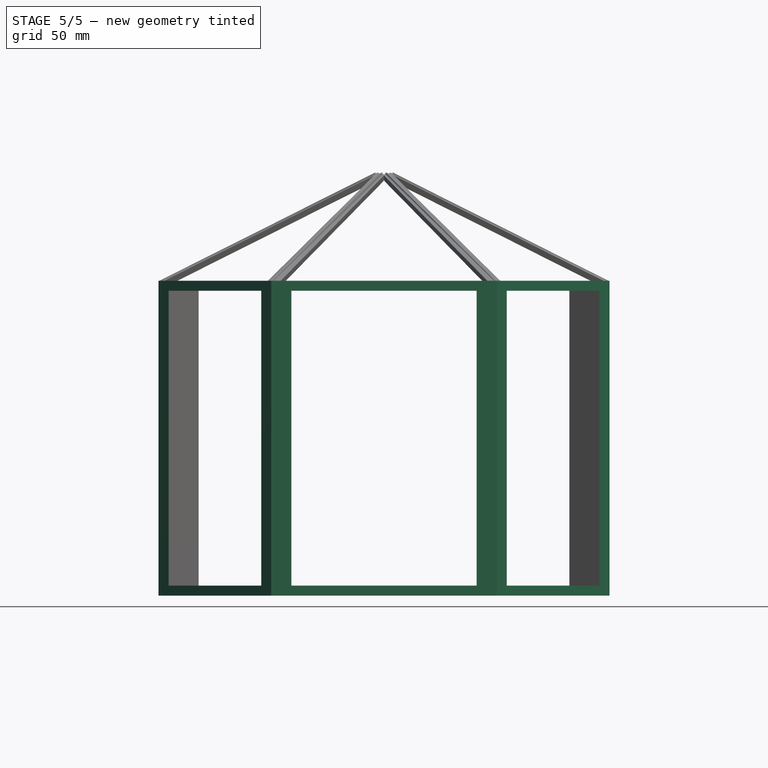
[diagram: stage 5 of 5 — front view after this stage's code; geometry added in this stage tinted green]
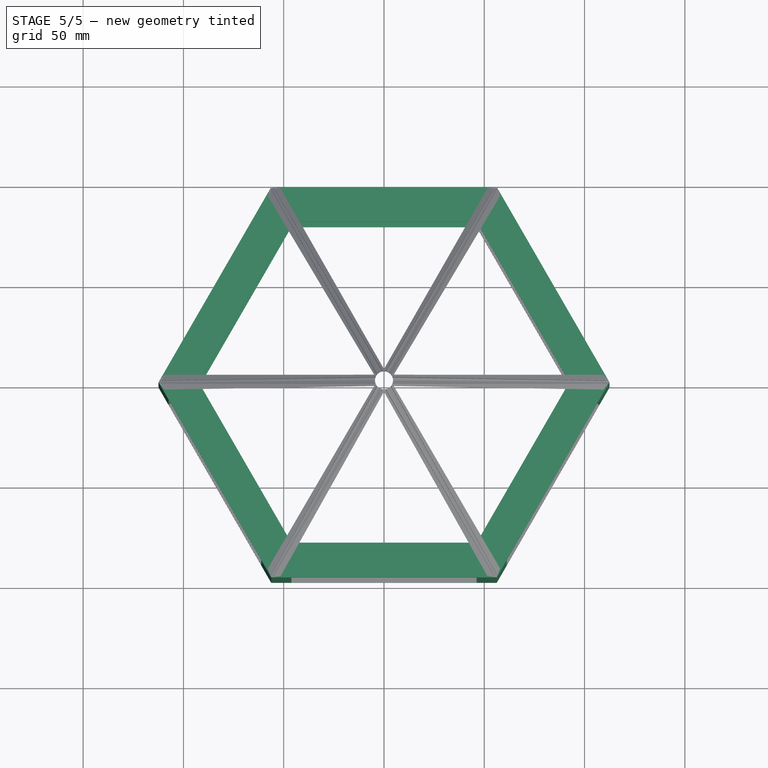
[diagram: stage 5 of 5 — top view after this stage's code; geometry added in this stage tinted green]
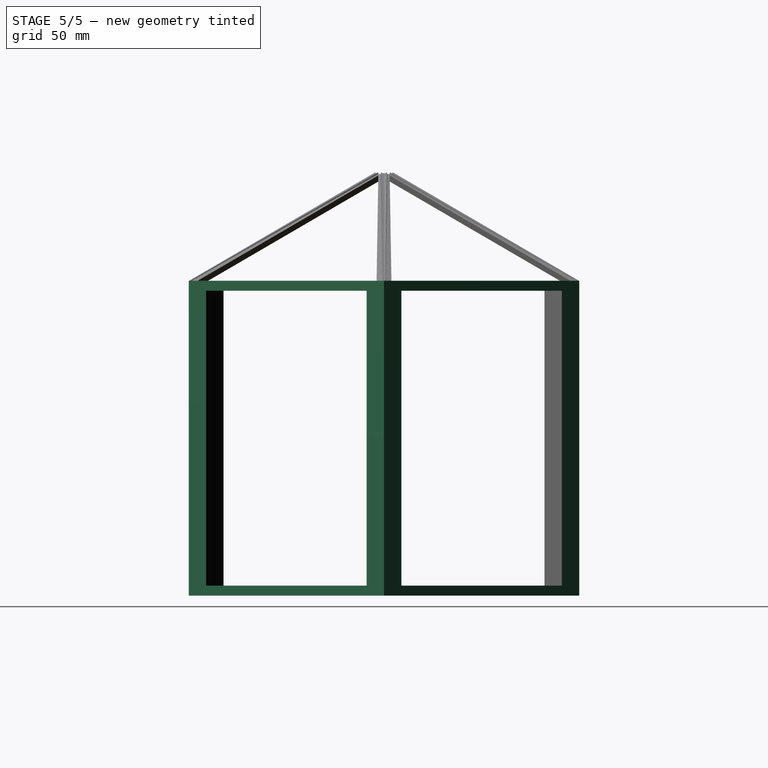
[diagram: stage 5 of 5 — right view after this stage's code; geometry added in this stage tinted green]
FEATURE [Sketcher::SketchObject] Sketch
  ArcFitTolerance = 1e-06
  AttachmentSupport = -> [XY_Plane]
  FullyConstrained = true
  MakeInternals = false
  MapMode = 5
  sketch-geometry (7):
    g0: LineSegment StartX=112.4 StartY=0 StartZ=0 EndX=56.2 EndY=97.3413 EndZ=0
    g1: LineSegment StartX=56.2 StartY=97.3413 StartZ=0 EndX=-56.2 EndY=97.3413 EndZ=0
    g2: LineSegment StartX=-56.2 StartY=97.3413 StartZ=0 EndX=-112.4 EndY=0 EndZ=0
    g3: LineSegment StartX=-112.4 StartY=0 StartZ=0 EndX=-56.2 EndY=-97.3413 EndZ=0
    g4: LineSegment StartX=-56.2 StartY=-97.3413 StartZ=0 EndX=56.2 EndY=-97.3413 EndZ=0
    g5: LineSegment StartX=56.2 StartY=-97.3413 StartZ=0 EndX=112.4 EndY=0 EndZ=0
    g6: Circle [constr] CenterX=0 CenterY=0 CenterZ=0 NormalX=0 NormalY=0 NormalZ=1 AngleXU=0 Radius=112.4
  constraints (16):
    c: Coincident(g0,g1)
    c: Coincident(g1,g2)
    c: Coincident(g2,g3)
    c: Coincident(g3,g4)
    c: Coincident(g4,g5)
    c: Coincident(g5,g0)
    c: Equal(g0, g1-g5) x5
    c: PointOnObject(g0,g6)
    c: PointOnObject(g1,g6)
    c: PointOnObject(g2,g6)
    c: PointOnObject(g3,g6)
    c: PointOnObject(g4,g6)
    c: PointOnObject(g5,g6)
    c: Radius(g6) = 112.4
    c: Coincident(g6,g-1)
    c: PointOnObject(g5,g-1)
FEATURE [PartDesign::Pad] Pad
  Direction = (0,0,1)
  Length = 157
  Length2 = 10
  Profile = -> Sketch
  ReferenceAxis = -> Sketch [N_Axis]
  Suppressed = false
  Type = 0
FEATURE [PartDesign::Body] Body
  AllowCompound = false
  Group = -> [Sketch,Pad]
  Origin = -> Origin
  Tip = -> Pad
FEATURE [Sketcher::SketchObject] Sketch001
  ArcFitTolerance = 1e-06
  AttachmentSupport = -> [XY_Plane001]
  FullyConstrained = true
  MakeInternals = false
  MapMode = 5
  sketch-geometry (7):
    g0: LineSegment StartX=92.4 StartY=0 StartZ=0 EndX=46.2 EndY=80.0207 EndZ=0
    g1: LineSegment StartX=46.2 StartY=80.0207 StartZ=0 EndX=-46.2 EndY=80.0207 EndZ=0
    g2: LineSegment StartX=-46.2 StartY=80.0207 StartZ=0 EndX=-92.4 EndY=1.42e-14 EndZ=0
    g3: LineSegment StartX=-92.4 StartY=7.5e-15 StartZ=0 EndX=-46.2 EndY=-80.0207 EndZ=0
    g4: LineSegment StartX=-46.2 StartY=-80.0207 StartZ=0 EndX=46.2 EndY=-80.0207 EndZ=0
    g5: LineSegment StartX=46.2 StartY=-80.0207 StartZ=0 EndX=92.4 EndY=0 EndZ=0
    g6: Circle [constr] CenterX=0 CenterY=0 CenterZ=0 NormalX=0 NormalY=0 NormalZ=1 AngleXU=0 Radius=92.4
  constraints (16):
    c: Coincident(g0,g1)
    c: Coincident(g1,g2)
    c: Coincident(g2,g3)
    c: Coincident(g3,g4)
    c: Coincident(g4,g5)
    c: Coincident(g5,g0)
    c: Equal(g0, g1-g5) x5
    c: PointOnObject(g0,g6)
    c: PointOnObject(g1,g6)
    c: PointOnObject(g2,g6)
    c: PointOnObject(g3,g6)
    c: PointOnObject(g4,g6)
    c: PointOnObject(g5,g6)
    c: Radius(g6) = 92.4
    c: Coincident(g6,g-1)
    c: PointOnObject(g5,g-1)
FEATURE [PartDesign::Pad] Pad001
  Direction = (0,0,1)
  Length = 157
  Length2 = 10
  Profile = -> Sketch001
  ReferenceAxis = -> Sketch001 [N_Axis]
  Suppressed = false
  Type = 0
FEATURE [PartDesign::Body] Body001
  AllowCompound = false
  Group = -> [Sketch001,Pad001]
  Origin = -> Origin001
  Tip = -> Pad001
FEATURE [Part::Cut] Cut
  Base = -> Body
  Tool = -> Body001
FEATURE [Part::Box] Box  label="Cube"
  AttacherType = Attacher::AttachEngine3D
  Height = 147
  Length = 92.4
  Placement = pos=(-46.2,80,5) rot=(0,0,1;0rad)
  Width = 18
FEATURE [Part::Compound] Compound
  Links = -> [Box]
FEATURE [Part::Box] Box001  label="Cube001"
  AttacherType = Attacher::AttachEngine3D
  Height = 147
  Length = 92.4
  Placement = pos=(-46.2,80,5) rot=(0,0,1;0rad)
  Width = 18
FEATURE [Part::Compound] Compound001
  Links = -> [Box001]
  Placement = pos=(0,0,0) rot=(0,0,1;1.0472rad)
FEATURE [Part::MultiFuse] Fusion
  Shapes = -> [Compound005,Compound,Compound001,Compound002,Compound003,Compound004]
FEATURE [Part::Cut] Cut001
  Base = -> Cut
  Tool = -> Fusion
FEATURE [Part::MultiFuse] Fusion002
  Shapes = -> [Cut001,Cut008]
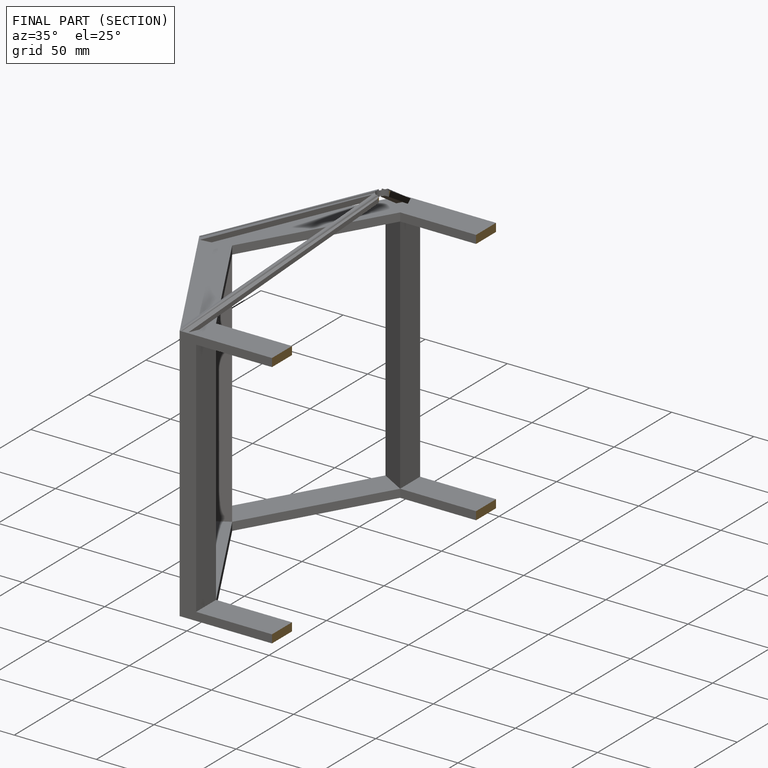
[diagram: finished part — half-section view (interior)]
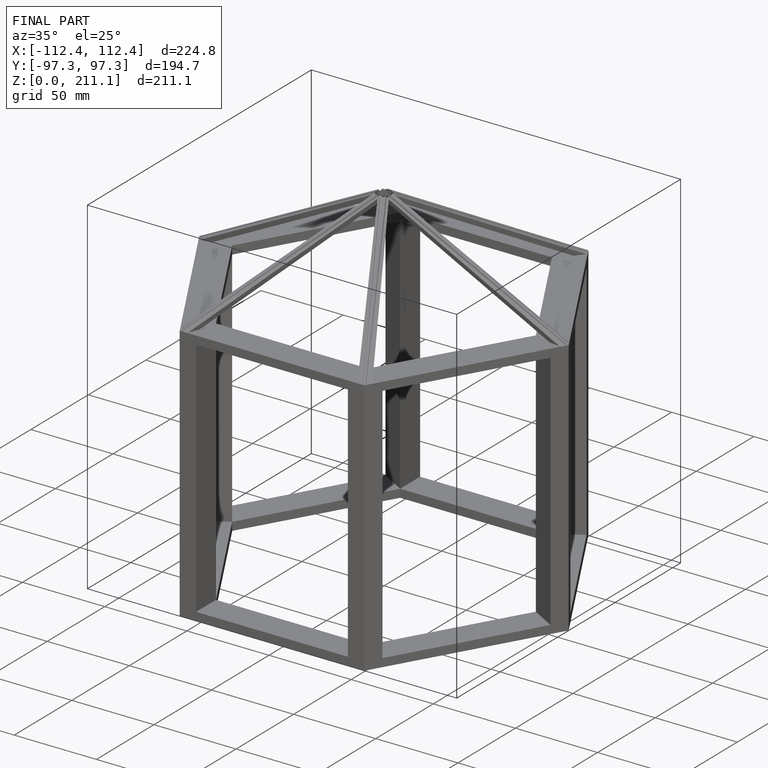
[diagram: finished part — iso view with bounding-box wireframe]
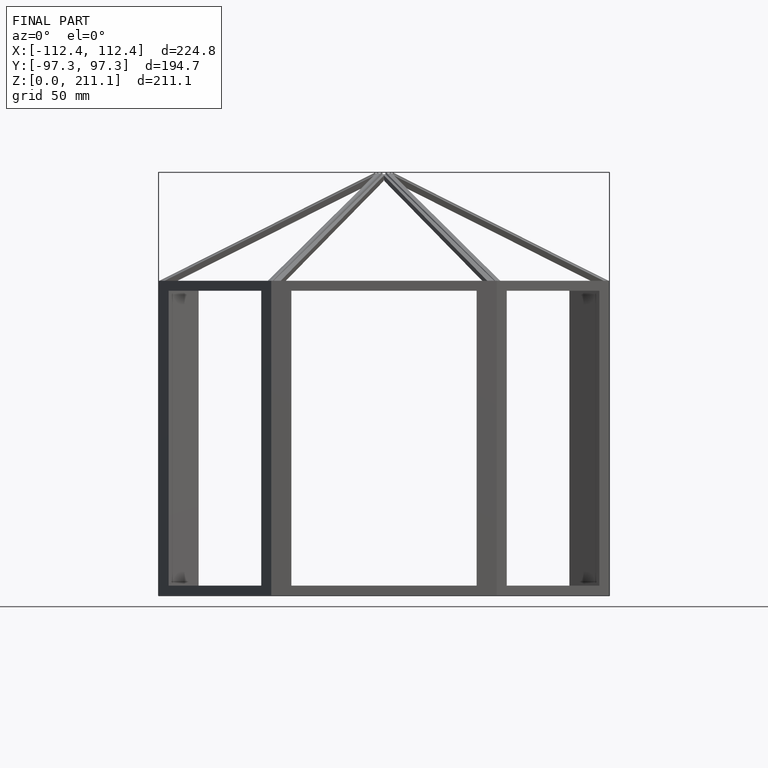
[diagram: finished part — front view with bounding-box wireframe]
